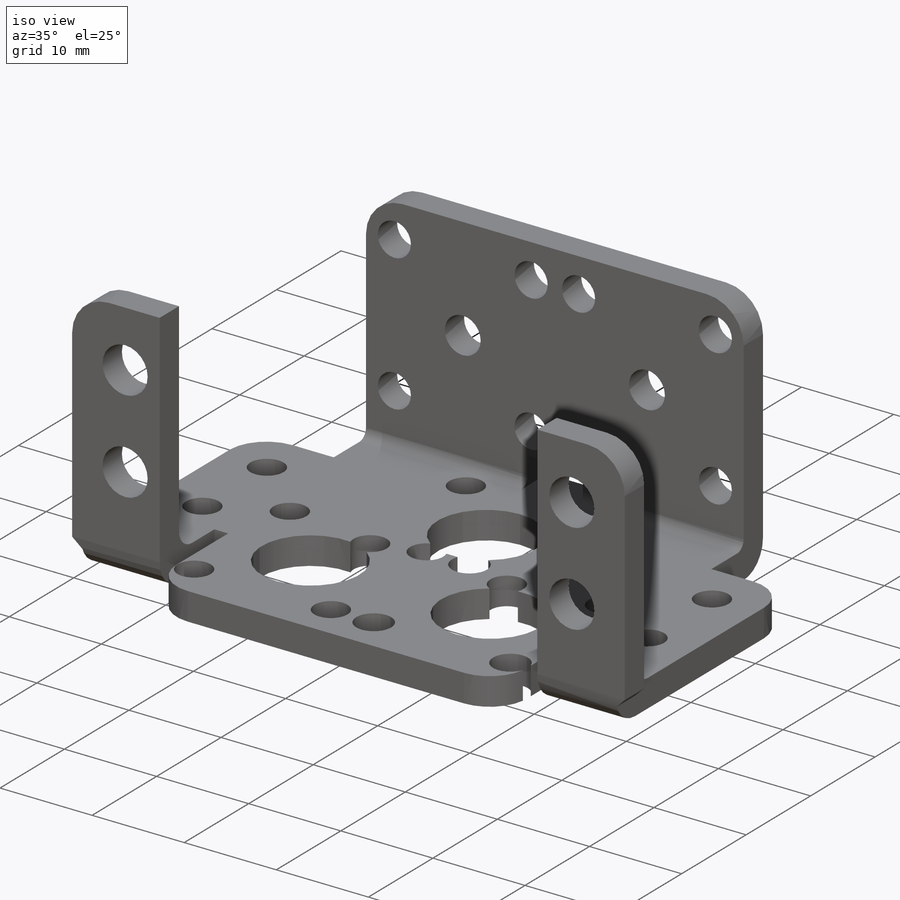
[diagram: iso view]
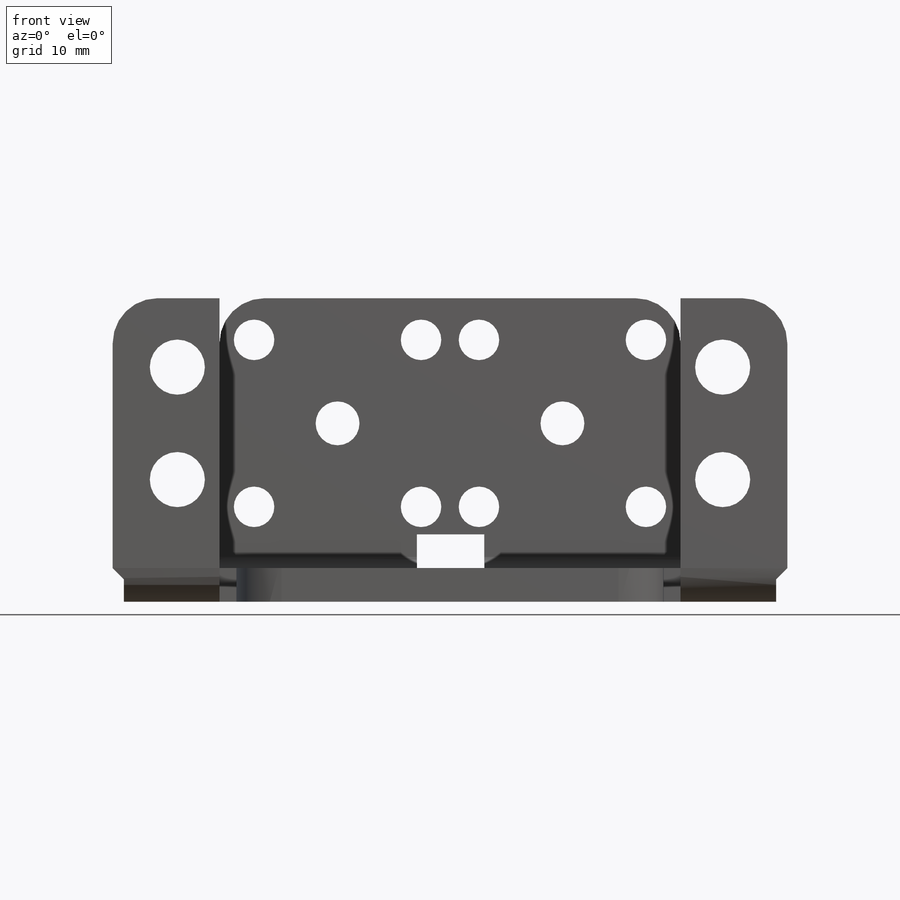
[diagram: front view]
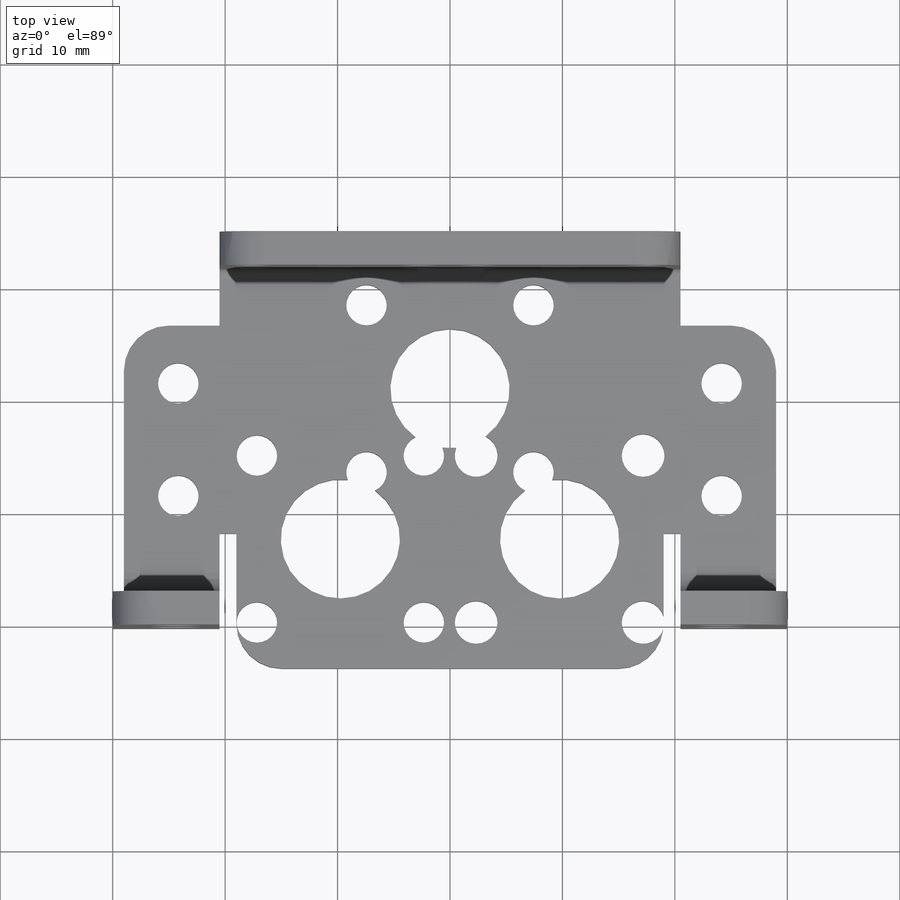
[diagram: top view]
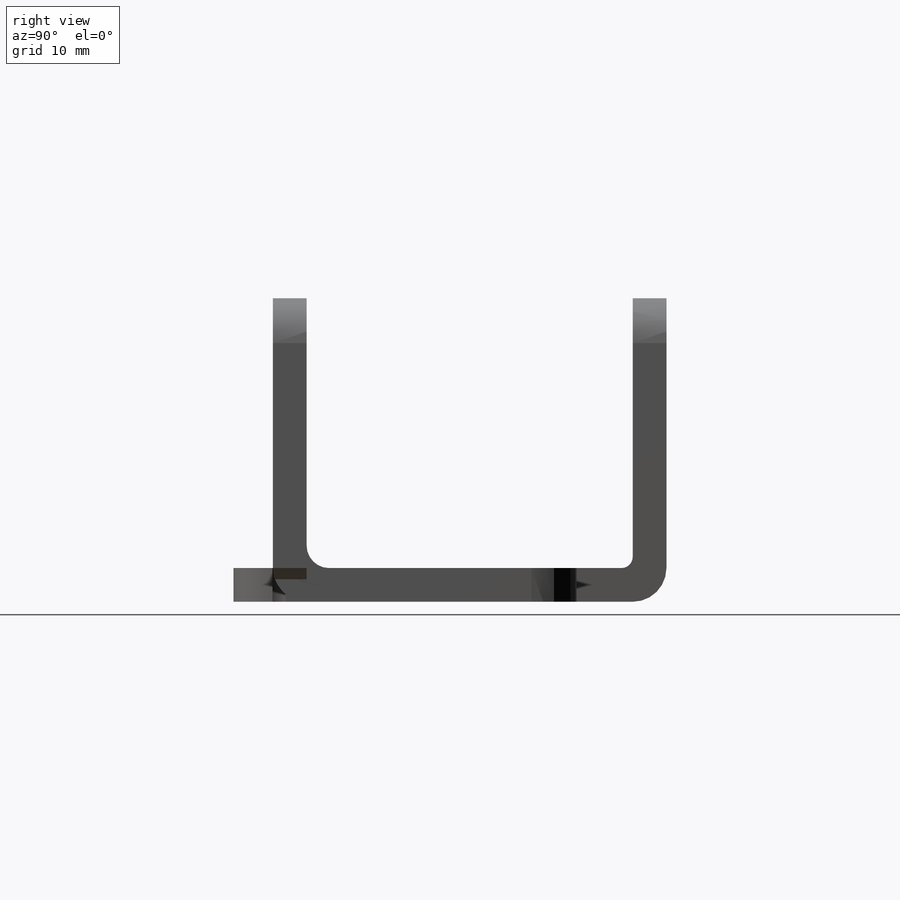
[diagram: right view]
SOLIDWORKS PART (.sldprt)
format: sldprt  version: not decoded by parser v0  size: 589,312 bytes
history: native  units: mm
features: sketch x14, extrude x7, cut_extrude x7, plane x4, fillet x4, mirror x3, material x1, chamfer x1, pattern_circular x1 (+8 scaffold rows collapsed)
feature tree (50):
  scaffold x8  (default folders/planes/origin — collapsed)
  material  "Material <sin especificar>"
  plane  "Alzado"
  plane  "Planta"
  plane  "Vista lateral"
  sketch  "Croquis1"  dims[D5=3.8mm D6=10.6mm D1=23.5mm D2=41.0mm D3=10.6mm D4=7.0mm]
  extrude  "Saliente-Extruir1"  Depth=3mm
  sketch  "Croquis3"  dims[D1=3.0mm D2=41.0mm]
  extrude  "Saliente-Extruir2"  Depth=27mm
  sketch  "Croquis4"  dims[c1.D4=4.0mm c1.D5=3.6mm c1.D6=3.9mm c1.D1=24.0mm c1.D2=8.5mm c1.D3=5.0mm c2.D6=10.0mm c2.D7=5.13mm]
  extrude  "Saliente-Extruir3"  Depth=3mm
  sketch  "Croquis5"  dims[D1=3.0mm]
  extrude  "Saliente-Extruir4"  Depth=27mm
  sketch  "Croquis6"  dims[D1=38.0mm]
  extrude  "Saliente-Extruir5"  Depth=12mm
  sketch  "Croquis10"  dims[D1=4.9mm D2=10.0mm D3=3.75mm D4=7.87mm]
  cut_extrude  "Cortar-Extruir3"  [1 undecoded]
  plane  "Plano1"
  mirror  "Simetría3"
  sketch  "Croquis16"
  extrude  "Saliente-Extruir6"  Depth=1mm
  sketch  "Croquis17"
  extrude  "Saliente-Extruir7"  Depth=1mm
  sketch  "Croquis8"  dims[c1.D1=8.9mm c1.D2=14.0mm c1.D3=3.9mm c1.D5=16.43mm c1.D6=9.75mm c1.D7=~13.224311mm c2.D5=13.37mm]
  cut_extrude  "Cortar-Extruir1"  [1 undecoded]
  mirror  "Simetría4"
  sketch  "Croquis9"  dims[c1.D1=3.9mm c1.D5=3.6mm c1.D6=3.9mm c2.D1=3.9mm c2.D6=21.0mm c2.D2=20.0mm c2.D3=13.13mm c2.D4=~28.411555mm c3.D3=12.87mm c3.D4=~4.615916mm c4.D4=45.0deg c4.D2=10.0mm]
  cut_extrude  "Cortar-Extruir2"  [1 undecoded]
  fillet  "Redondeo1"  Radius=4mm
  fillet  "Redondeo2"  Radius=3mm
  fillet  "Redondeo3"  Radius=1mm
  fillet  "Redondeo4"  Radius=2mm
  sketch  "Croquis11"  dims[c1.D1=21.0mm c1.D2=3.6mm c1.D4=~9.155667mm c2.D4=45.0deg c2.D3=4.0]
  cut_extrude  "Cortar-Extruir4"  Depth=5mm
  sketch  "Croquis12"  dims[c1.D1=21.0mm c1.D2=3.6mm c1.D4=~8.860219mm c2.D4=45.0deg c2.D3=4.0]
  cut_extrude  "Cortar-Extruir5"  Depth=5mm
  sketch  "Croquis14"  dims[c1.D1=21.0mm c1.D2=10.0mm c1.D4=10.0mm c2.D4=45.0deg c2.D3=4.0]
  cut_extrude  "Cortar-Extruir6"  Depth=5mm
  sketch  "Croquis15"  dims[D1=6.0mm D2=3.0mm]
  cut_extrude  "Cortar-Extruir7"  Depth=6mm
  chamfer  "Chaflán1"  Distance=1mm Angle=45deg
  pattern_circular  "MatrizC1"  Count=4 Angle=360deg
  mirror  "Simetría5"
decode coverage: 29 of 37 modeling features carry decoded parameters
note: ~ marks probable driven/reference dimensions
note: 3 parameter values undecoded
summary: no parameter record found for 3 features
note: suppression state not decoded; provenance and decode notes live in map.json
